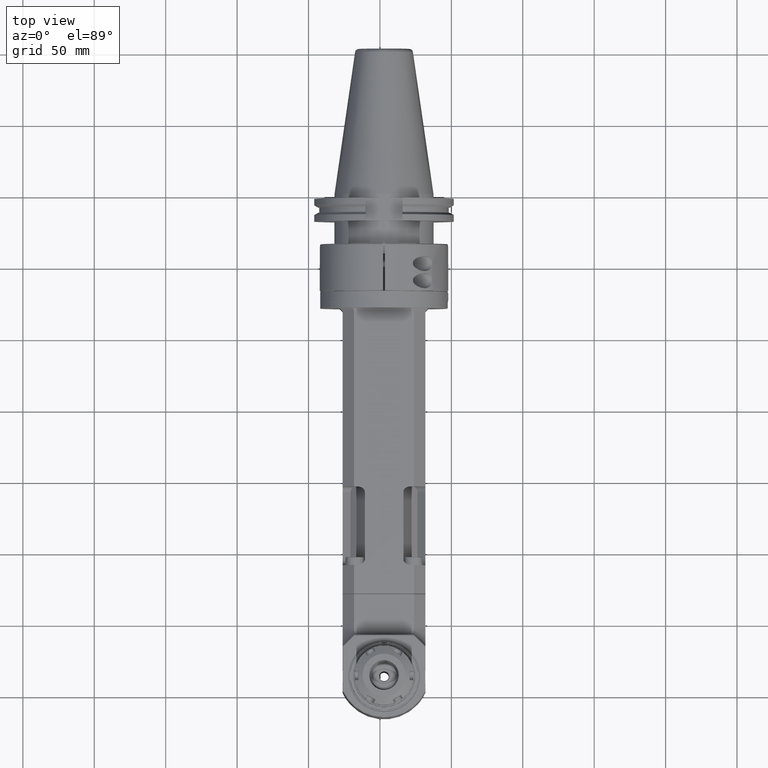
[diagram: clean part render]
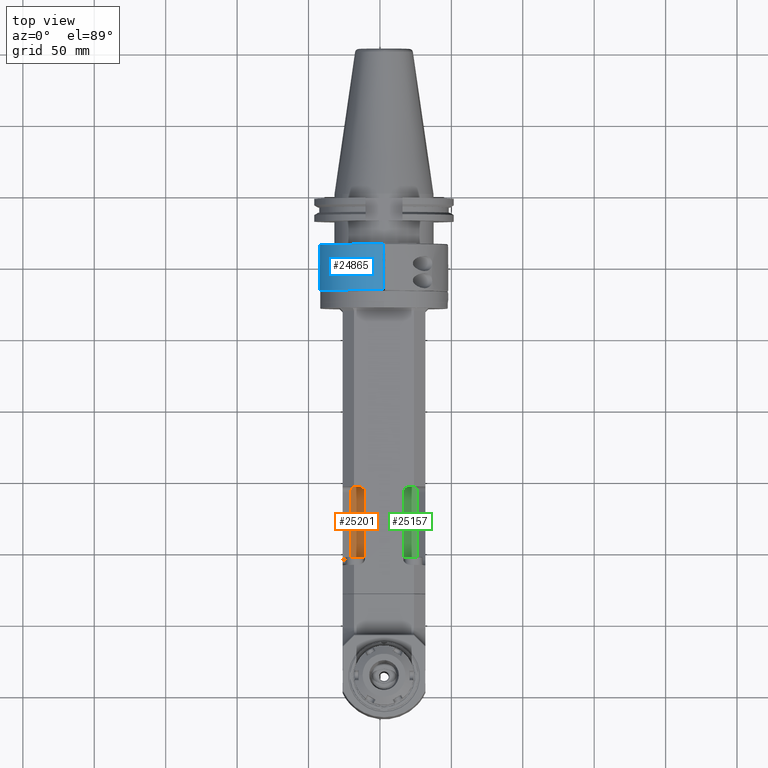
[diagram: same view with three faces highlighted in distinct colors, each labeled with its STEP entity id]
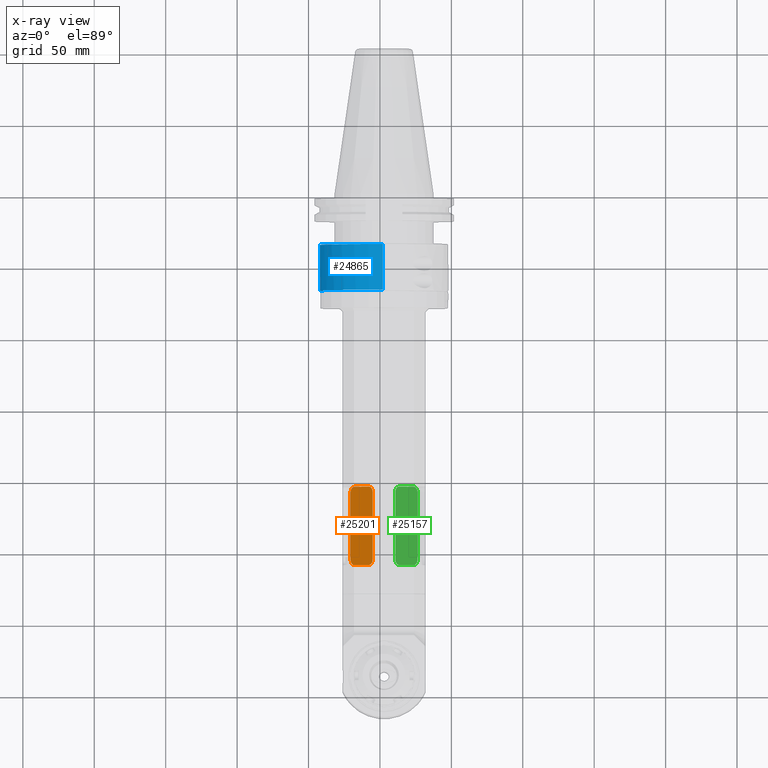
[diagram: x-ray of the same camera — body ghosted, the three highlighted faces saturated]
A machine part, top view with three faces highlighted in distinct colors.
The next image is the same camera in x-ray (body ghosted, the three faces saturated) — at least one of them is partly hidden behind the body in this view.
Their STEP definitions:

[orange] entity #25201 — the highlighted planar face has unit normal (-0.7071, 0, 0.7071).
#1469=CIRCLE('',#27280,4.);
#1470=CIRCLE('',#27282,4.);
#1471=CIRCLE('',#27283,4.);
#1472=CIRCLE('',#27284,4.);
#3227=FACE_OUTER_BOUND('',#4796,.T.);
#4796=EDGE_LOOP('',(#19315,#19316,#19317,#19318,#19319,#19320,#19321,#19322));
#6806=LINE('',#40538,#8897);
#6808=LINE('',#40549,#8899);
#6809=LINE('',#40553,#8900);
#6810=LINE('',#40556,#8901);
#8897=VECTOR('',#31712,13.9999999999991);
#8899=VECTOR('',#31724,47.);
#8900=VECTOR('',#31727,13.9999999999991);
#8901=VECTOR('',#31730,47.);
#11156=VERTEX_POINT('',#40534);
#11157=VERTEX_POINT('',#40536);
#11159=VERTEX_POINT('',#40542);
#11160=VERTEX_POINT('',#40546);
#11161=VERTEX_POINT('',#40548);
#11162=VERTEX_POINT('',#40550);
#11163=VERTEX_POINT('',#40552);
#11164=VERTEX_POINT('',#40554);
#14126=EDGE_CURVE('',#11157,#11156,#6806,.T.);
#14128=EDGE_CURVE('',#11159,#11156,#1469,.T.);
#14130=EDGE_CURVE('',#11157,#11160,#1470,.T.);
#14131=EDGE_CURVE('',#11160,#11161,#6808,.T.);
#14132=EDGE_CURVE('',#11161,#11162,#1471,.T.);
#14133=EDGE_CURVE('',#11162,#11163,#6809,.T.);
#14134=EDGE_CURVE('',#11163,#11164,#1472,.T.);
#14135=EDGE_CURVE('',#11159,#11164,#6810,.T.);
#19315=ORIENTED_EDGE('',*,*,#14128,.T.);
#19316=ORIENTED_EDGE('',*,*,#14126,.F.);
#19317=ORIENTED_EDGE('',*,*,#14130,.T.);
#19318=ORIENTED_EDGE('',*,*,#14131,.T.);
#19319=ORIENTED_EDGE('',*,*,#14132,.T.);
#19320=ORIENTED_EDGE('',*,*,#14133,.T.);
#19321=ORIENTED_EDGE('',*,*,#14134,.T.);
#19322=ORIENTED_EDGE('',*,*,#14135,.F.);
#24245=PLANE('',#27281);
#25201=ADVANCED_FACE('',(#3227),#24245,.T.);
#27280=AXIS2_PLACEMENT_3D('',#40543,#31717,#31718);
#27281=AXIS2_PLACEMENT_3D('',#40545,#31720,#31721);
#27282=AXIS2_PLACEMENT_3D('',#40547,#31722,#31723);
#27283=AXIS2_PLACEMENT_3D('',#40551,#31725,#31726);
#27284=AXIS2_PLACEMENT_3D('',#40555,#31728,#31729);
#31712=DIRECTION('',(-0.707106781186548,0.,-0.707106781186548));
#31717=DIRECTION('center_axis',(-0.707106781186548,0.,0.707106781186548));
#31718=DIRECTION('ref_axis',(-0.707106781186548,0.,-0.707106781186548));
#31720=DIRECTION('center_axis',(-0.707106781186548,0.,0.707106781186548));
#31721=DIRECTION('ref_axis',(-0.707106781186548,0.,-0.707106781186548));
#31722=DIRECTION('center_axis',(-0.707106781186548,0.,0.707106781186548));
#31723=DIRECTION('ref_axis',(0.,-1.,0.));
#31724=DIRECTION('',(0.,1.,0.));
#31725=DIRECTION('center_axis',(-0.707106781186548,0.,0.707106781186548));
#31726=DIRECTION('ref_axis',(0.707106781186548,0.,0.707106781186548));
#31727=DIRECTION('',(-0.707106781186548,0.,-0.707106781186548));
#31728=DIRECTION('center_axis',(-0.707106781186548,0.,0.707106781186548));
#31729=DIRECTION('ref_axis',(0.,1.,0.));
#31730=DIRECTION('',(0.,1.,0.));
#40534=CARTESIAN_POINT('',(-20.62741699797,-192.,14.72792206136));
#40536=CARTESIAN_POINT('',(-10.72792206136,-192.,24.62741699797));
#40538=CARTESIAN_POINT('',(-10.72792206136,-192.,24.62741699797));
#40542=CARTESIAN_POINT('',(-23.45584412272,-188.,11.89949493661));
#40543=CARTESIAN_POINT('Origin',(-20.62741699797,-188.,14.72792206136));
#40545=CARTESIAN_POINT('Origin',(-7.899494936612,-192.,27.45584412272));
#40546=CARTESIAN_POINT('',(-7.899494936612,-188.,27.45584412272));
#40547=CARTESIAN_POINT('Origin',(-10.72792206136,-188.,24.62741699797));
#40548=CARTESIAN_POINT('',(-7.899494936612,-141.,27.45584412272));
#40549=CARTESIAN_POINT('',(-7.899494936612,-188.,27.45584412272));
#40550=CARTESIAN_POINT('',(-10.72792206136,-137.,24.62741699797));
#40551=CARTESIAN_POINT('Origin',(-10.72792206136,-141.,24.62741699797));
#40552=CARTESIAN_POINT('',(-20.62741699797,-137.,14.72792206136));
#40553=CARTESIAN_POINT('',(-10.72792206136,-137.,24.62741699797));
#40554=CARTESIAN_POINT('',(-23.45584412272,-141.,11.89949493661));
#40555=CARTESIAN_POINT('Origin',(-20.62741699797,-141.,14.72792206136));
#40556=CARTESIAN_POINT('',(-23.45584412272,-188.,11.89949493661));

[blue] entity #24865 — the highlighted cylindrical surface (partial cylindrical patch) has radius 45 mm, axis along (0, 1, 0).
#1130=CIRCLE('',#26361,45.);
#1132=CIRCLE('',#26365,45.);
#1147=CIRCLE('',#26391,45.);
#1289=CIRCLE('',#26693,45.);
#2476=CYLINDRICAL_SURFACE('',#26694,45.);
#2891=FACE_OUTER_BOUND('',#4417,.T.);
#4417=EDGE_LOOP('',(#17481,#17482,#17483,#17484,#17485,#17486,#17487,#17488));
#5998=LINE('',#36239,#8089);
#6000=LINE('',#36246,#8091);
#6027=LINE('',#36350,#8118);
#6238=LINE('',#37913,#8329);
#8089=VECTOR('',#29068,9.49974457131);
#8091=VECTOR('',#29076,9.499744095647);
#8118=VECTOR('',#29163,10.);
#8329=VECTOR('',#29978,31.99972865214);
#10266=VERTEX_POINT('',#36233);
#10268=VERTEX_POINT('',#36237);
#10269=VERTEX_POINT('',#36241);
#10270=VERTEX_POINT('',#36245);
#10271=VERTEX_POINT('',#36249);
#10303=VERTEX_POINT('',#36341);
#10304=VERTEX_POINT('',#36345);
#10305=VERTEX_POINT('',#36349);
#12761=EDGE_CURVE('',#10268,#10266,#5998,.T.);
#12762=EDGE_CURVE('',#10266,#10269,#1130,.T.);
#12764=EDGE_CURVE('',#10269,#10270,#6000,.T.);
#12766=EDGE_CURVE('',#10271,#10270,#1132,.T.);
#12811=EDGE_CURVE('',#10303,#10304,#1147,.T.);
#12812=EDGE_CURVE('',#10303,#10305,#6027,.T.);
#13215=EDGE_CURVE('',#10268,#10305,#1289,.T.);
#13216=EDGE_CURVE('',#10271,#10304,#6238,.T.);
#17481=ORIENTED_EDGE('',*,*,#12762,.F.);
#17482=ORIENTED_EDGE('',*,*,#12761,.F.);
#17483=ORIENTED_EDGE('',*,*,#13215,.T.);
#17484=ORIENTED_EDGE('',*,*,#12812,.F.);
#17485=ORIENTED_EDGE('',*,*,#12811,.T.);
#17486=ORIENTED_EDGE('',*,*,#13216,.F.);
#17487=ORIENTED_EDGE('',*,*,#12766,.T.);
#17488=ORIENTED_EDGE('',*,*,#12764,.F.);
#24865=ADVANCED_FACE('',(#2891),#2476,.T.);
#26361=AXIS2_PLACEMENT_3D('',#36242,#29071,#29072);
#26365=AXIS2_PLACEMENT_3D('',#36250,#29081,#29082);
#26391=AXIS2_PLACEMENT_3D('',#36347,#29159,#29160);
#26693=AXIS2_PLACEMENT_3D('',#37911,#29974,#29975);
#26694=AXIS2_PLACEMENT_3D('',#37912,#29976,#29977);
#29068=DIRECTION('',(-1.037480124355E-10,1.,-4.718633579152E-9));
#29071=DIRECTION('center_axis',(0.,-1.,0.));
#29072=DIRECTION('ref_axis',(-0.999758397003231,0.,0.0219806192253507));
#29076=DIRECTION('',(-4.241007258163E-10,-1.,1.928899910892E-8));
#29081=DIRECTION('center_axis',(0.,1.,0.));
#29082=DIRECTION('ref_axis',(-0.949917759345018,0.,-0.312500000769506));
#29159=DIRECTION('center_axis',(0.,-1.,0.));
#29160=DIRECTION('ref_axis',(-1.,0.,0.));
#29163=DIRECTION('',(0.,-1.,0.));
#29974=DIRECTION('center_axis',(0.,1.,0.));
#29975=DIRECTION('ref_axis',(-0.999758397003229,0.,0.0219806192254406));
#29976=DIRECTION('center_axis',(0.,1.,0.));
#29977=DIRECTION('ref_axis',(-0.814950476315914,0.,0.579530604155178));
#29978=DIRECTION('',(-3.308492668145E-14,1.,-1.088027790195E-14));
#36233=CARTESIAN_POINT('',(-44.98912786515,10.,0.9891278651445));
#36237=CARTESIAN_POINT('',(-44.9891278583403,0.500255513180605,0.989127923368751));
#36239=CARTESIAN_POINT('',(-44.98912786416,0.5002554286897,0.9891279099703));
#36241=CARTESIAN_POINT('',(-44.98912786515,10.,-0.989127865146));
#36242=CARTESIAN_POINT('Origin',(0.,10.,0.));
#36245=CARTESIAN_POINT('',(-44.9891278900208,0.5002555524506,-0.989127620007495));
#36246=CARTESIAN_POINT('',(-44.98912786515,10.,-0.989127865146));
#36249=CARTESIAN_POINT('',(-42.7462992814008,0.500128045126402,-14.062500074222));
#36250=CARTESIAN_POINT('Origin',(3.224087663511E-13,0.5002555221787,5.768718835952E-13));
#36341=CARTESIAN_POINT('',(-0.75000000001169,32.4997444790191,44.993749565417));
#36345=CARTESIAN_POINT('',(-42.746299169598,32.4998722389116,-14.0625000374403));
#36347=CARTESIAN_POINT('Origin',(7.300826609935E-13,32.49974447782,2.313704783319E-13));
#36349=CARTESIAN_POINT('',(-0.750000000011695,0.50025552097995,44.9937495654167));
#36350=CARTESIAN_POINT('',(-0.75,0.,44.9937495659119));
#37911=CARTESIAN_POINT('Origin',(3.224087663511E-13,0.5002555221781,5.768718835952E-13));
#37912=CARTESIAN_POINT('Origin',(0.,0.,0.));
#37913=CARTESIAN_POINT('',(-42.74629916941,0.5001356739285,-14.06250003738));

[green] entity #25157 — the highlighted planar face has unit normal (-0.7071, -0, -0.7071).
#1447=CIRCLE('',#27214,4.);
#1448=CIRCLE('',#27216,4.);
#1449=CIRCLE('',#27217,4.);
#1450=CIRCLE('',#27218,4.);
#3183=FACE_OUTER_BOUND('',#4748,.T.);
#4748=EDGE_LOOP('',(#19103,#19104,#19105,#19106,#19107,#19108,#19109,#19110));
#6747=LINE('',#40119,#8838);
#6750=LINE('',#40132,#8841);
#6751=LINE('',#40136,#8842);
#6752=LINE('',#40138,#8843);
#8838=VECTOR('',#31521,13.9999999999991);
#8841=VECTOR('',#31534,13.9999999999991);
#8842=VECTOR('',#31537,47.);
#8843=VECTOR('',#31540,47.);
#11102=VERTEX_POINT('',#40116);
#11103=VERTEX_POINT('',#40118);
#11105=VERTEX_POINT('',#40124);
#11106=VERTEX_POINT('',#40128);
#11107=VERTEX_POINT('',#40129);
#11108=VERTEX_POINT('',#40131);
#11109=VERTEX_POINT('',#40133);
#11110=VERTEX_POINT('',#40135);
#14033=EDGE_CURVE('',#11103,#11102,#6747,.T.);
#14037=EDGE_CURVE('',#11102,#11105,#1447,.T.);
#14038=EDGE_CURVE('',#11106,#11107,#1448,.T.);
#14039=EDGE_CURVE('',#11108,#11107,#6750,.T.);
#14040=EDGE_CURVE('',#11108,#11109,#1449,.T.);
#14041=EDGE_CURVE('',#11110,#11109,#6751,.T.);
#14042=EDGE_CURVE('',#11110,#11103,#1450,.T.);
#14043=EDGE_CURVE('',#11105,#11106,#6752,.T.);
#19103=ORIENTED_EDGE('',*,*,#14038,.T.);
#19104=ORIENTED_EDGE('',*,*,#14039,.F.);
#19105=ORIENTED_EDGE('',*,*,#14040,.T.);
#19106=ORIENTED_EDGE('',*,*,#14041,.F.);
#19107=ORIENTED_EDGE('',*,*,#14042,.T.);
#19108=ORIENTED_EDGE('',*,*,#14033,.T.);
#19109=ORIENTED_EDGE('',*,*,#14037,.T.);
#19110=ORIENTED_EDGE('',*,*,#14043,.T.);
#24217=PLANE('',#27215);
#25157=ADVANCED_FACE('',(#3183),#24217,.F.);
#27214=AXIS2_PLACEMENT_3D('',#40126,#31528,#31529);
#27215=AXIS2_PLACEMENT_3D('',#40127,#31530,#31531);
#27216=AXIS2_PLACEMENT_3D('',#40130,#31532,#31533);
#27217=AXIS2_PLACEMENT_3D('',#40134,#31535,#31536);
#27218=AXIS2_PLACEMENT_3D('',#40137,#31538,#31539);
#31521=DIRECTION('',(0.707106781186548,0.,-0.707106781186548));
#31528=DIRECTION('center_axis',(0.707106781186548,0.,0.707106781186548));
#31529=DIRECTION('ref_axis',(0.,-1.,0.));
#31530=DIRECTION('center_axis',(-0.707106781186548,0.,-0.707106781186548));
#31531=DIRECTION('ref_axis',(0.707106781186548,0.,-0.707106781186548));
#31532=DIRECTION('center_axis',(0.707106781186548,0.,0.707106781186548));
#31533=DIRECTION('ref_axis',(0.707106781186548,0.,-0.707106781186548));
#31534=DIRECTION('',(0.707106781186548,0.,-0.707106781186548));
#31535=DIRECTION('center_axis',(0.707106781186548,0.,0.707106781186548));
#31536=DIRECTION('ref_axis',(0.,1.,0.));
#31537=DIRECTION('',(0.,1.,0.));
#31538=DIRECTION('center_axis',(0.707106781186548,0.,0.707106781186548));
#31539=DIRECTION('ref_axis',(-0.707106781186548,1.4210854715201E-14,0.707106781186548));
#31540=DIRECTION('',(0.,1.,0.));
#40116=CARTESIAN_POINT('',(20.62741699797,-192.,14.72792206136));
#40118=CARTESIAN_POINT('',(10.72792206136,-192.,24.62741699797));
#40119=CARTESIAN_POINT('',(10.72792206136,-192.,24.62741699797));
#40124=CARTESIAN_POINT('',(23.45584412272,-188.,11.89949493661));
#40126=CARTESIAN_POINT('Origin',(20.62741699797,-188.,14.72792206136));
#40127=CARTESIAN_POINT('Origin',(7.899494936612,-192.,27.45584412272));
#40128=CARTESIAN_POINT('',(23.45584412272,-141.,11.89949493661));
#40129=CARTESIAN_POINT('',(20.62741699797,-137.,14.72792206136));
#40130=CARTESIAN_POINT('Origin',(20.62741699797,-141.,14.72792206136));
#40131=CARTESIAN_POINT('',(10.72792206136,-137.,24.62741699797));
#40132=CARTESIAN_POINT('',(10.72792206136,-137.,24.62741699797));
#40133=CARTESIAN_POINT('',(7.899494936612,-141.,27.45584412272));
#40134=CARTESIAN_POINT('Origin',(10.72792206136,-141.,24.62741699797));
#40135=CARTESIAN_POINT('',(7.899494936612,-188.,27.45584412272));
#40136=CARTESIAN_POINT('',(7.899494936612,-188.,27.45584412272));
#40137=CARTESIAN_POINT('Origin',(10.72792206136,-188.,24.62741699797));
#40138=CARTESIAN_POINT('',(23.45584412272,-188.,11.89949493661));